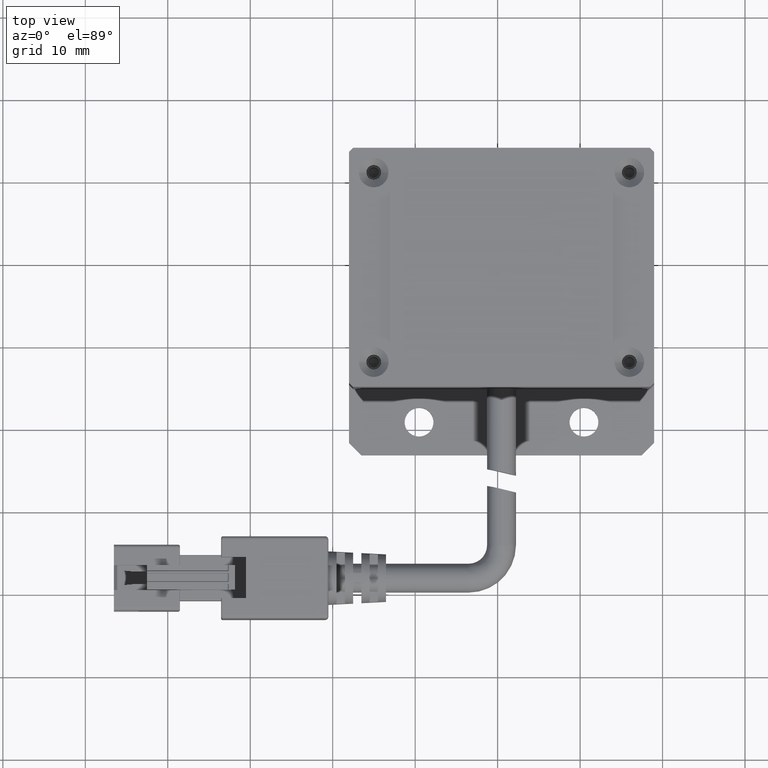
[diagram: clean part render]
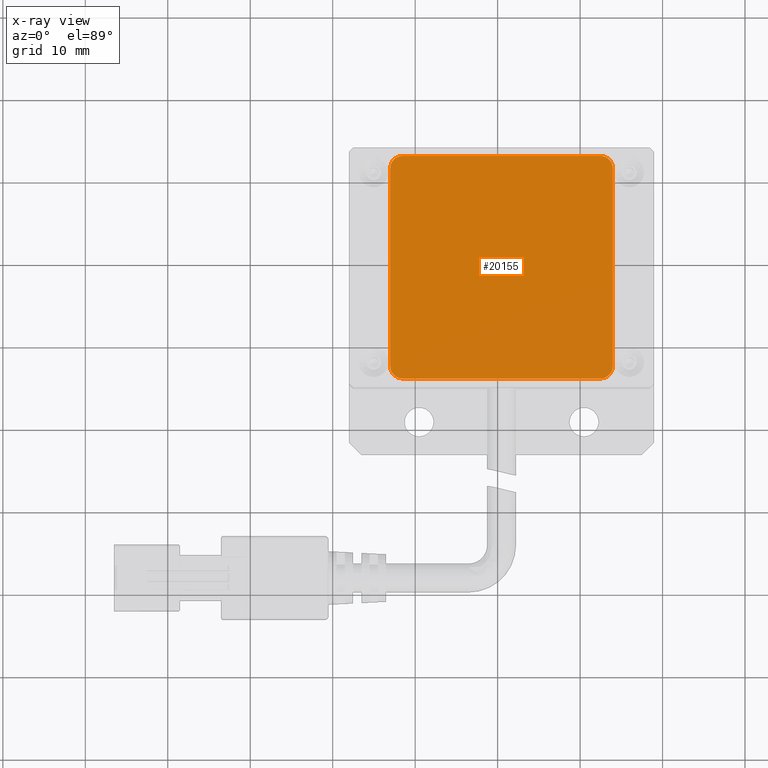
[diagram: x-ray — body ghosted, one internal face saturated and labeled with its STEP entity id]
A machine part, top view, then the same camera in x-ray: the body is ghosted and one INTERNAL B-rep face — a face not visible from any outside direction — is saturated and labeled: STEP entity #20155.
In plain terms, the highlighted planar face has unit normal (0, 0, 1).
Its self-contained STEP definition (entity closure, byte-faithful):
#95 = VERTEX_POINT ( 'NONE', #18037 ) ;
#132 = CARTESIAN_POINT ( 'NONE',  ( 12.47059946544482800, 12.94635357006494500, 15.99999999998363100 ) ) ;
#448 = DIRECTION ( 'NONE',  ( -1.000000000000000000, 0.0000000000000000000, 0.0000000000000000000 ) ) ;
#943 = CARTESIAN_POINT ( 'NONE',  ( 13.97059946544482900, -12.55364642993505300, 15.99999999998363100 ) ) ;
#1018 = AXIS2_PLACEMENT_3D ( 'NONE', #5120, #16010, #6682 ) ;
#1336 = DIRECTION ( 'NONE',  ( 1.000000000000000000, 0.0000000000000000000, 0.0000000000000000000 ) ) ;
#1367 = DIRECTION ( 'NONE',  ( 1.000000000000000000, -7.228014483236697000E-017, 0.0000000000000000000 ) ) ;
#2052 = PLANE ( 'NONE',  #8283 ) ;
#2251 = CARTESIAN_POINT ( 'NONE',  ( -11.52940053455516900, -14.05364642993505200, 15.99999999998363100 ) ) ;
#2601 = ORIENTED_EDGE ( 'NONE', *, *, #13126, .F. ) ;
#2936 = CARTESIAN_POINT ( 'NONE',  ( -11.52940053455516900, -14.05364642993505200, 15.99999999998363100 ) ) ;
#3045 = EDGE_LOOP ( 'NONE', ( #9372, #17638, #17722, #2601, #3585, #8242, #13356, #13600 ) ) ;
#3230 = CARTESIAN_POINT ( 'NONE',  ( 13.97059946544482900, 11.44635357006494500, 15.99999999998363100 ) ) ;
#3585 = ORIENTED_EDGE ( 'NONE', *, *, #19570, .F. ) ;
#3631 = DIRECTION ( 'NONE',  ( 1.000000000000000000, 0.0000000000000000000, -0.0000000000000000000 ) ) ;
#3874 = CARTESIAN_POINT ( 'NONE',  ( 12.47059946544482800, -12.55364642993505300, 15.99999999998363100 ) ) ;
#4283 = EDGE_CURVE ( 'NONE', #12346, #5299, #12738, .T. ) ;
#4350 = FACE_OUTER_BOUND ( 'NONE', #3045, .T. ) ;
#4471 = LINE ( 'NONE', #14961, #7624 ) ;
#4761 = VERTEX_POINT ( 'NONE', #3230 ) ;
#4928 = VERTEX_POINT ( 'NONE', #2251 ) ;
#5120 = CARTESIAN_POINT ( 'NONE',  ( -11.52940053455516900, 11.44635357006494500, 15.99999999998363100 ) ) ;
#5299 = VERTEX_POINT ( 'NONE', #7757 ) ;
#5418 = DIRECTION ( 'NONE',  ( 1.000000000000000000, 0.0000000000000000000, 0.0000000000000000000 ) ) ;
#6682 = DIRECTION ( 'NONE',  ( 1.000000000000000000, 0.0000000000000000000, 0.0000000000000000000 ) ) ;
#7123 = DIRECTION ( 'NONE',  ( 0.0000000000000000000, 1.000000000000000000, 0.0000000000000000000 ) ) ;
#7624 = VECTOR ( 'NONE', #13404, 1000.000000000000000 ) ;
#7757 = CARTESIAN_POINT ( 'NONE',  ( -11.52940053455516900, 12.94635357006494500, 15.99999999998363100 ) ) ;
#7980 = CARTESIAN_POINT ( 'NONE',  ( 12.47059946544482800, 11.44635357006494500, 15.99999999998363100 ) ) ;
#8242 = ORIENTED_EDGE ( 'NONE', *, *, #16556, .F. ) ;
#8243 = CARTESIAN_POINT ( 'NONE',  ( -11.52940053455516900, 11.44635357006494500, 15.99999999998363100 ) ) ;
#8283 = AXIS2_PLACEMENT_3D ( 'NONE', #8243, #12937, #3631 ) ;
#8453 = CIRCLE ( 'NONE', #1018, 1.500000000000001300 ) ;
#8761 = CARTESIAN_POINT ( 'NONE',  ( -13.02940053455517100, 11.44635357006494500, 15.99999999998363100 ) ) ;
#8778 = CARTESIAN_POINT ( 'NONE',  ( -13.02940053455517100, -12.55364642993505300, 15.99999999998363100 ) ) ;
#8869 = VERTEX_POINT ( 'NONE', #8761 ) ;
#9372 = ORIENTED_EDGE ( 'NONE', *, *, #20126, .F. ) ;
#9459 = AXIS2_PLACEMENT_3D ( 'NONE', #19967, #10660, #1336 ) ;
#9549 = DIRECTION ( 'NONE',  ( 1.000000000000000000, 0.0000000000000000000, 0.0000000000000000000 ) ) ;
#10580 = EDGE_CURVE ( 'NONE', #17122, #4928, #11978, .T. ) ;
#10660 = DIRECTION ( 'NONE',  ( 0.0000000000000000000, 0.0000000000000000000, 1.000000000000000000 ) ) ;
#11670 = CIRCLE ( 'NONE', #12584, 1.500000000000001300 ) ;
#11978 = CIRCLE ( 'NONE', #9459, 1.500000000000001300 ) ;
#12055 = CARTESIAN_POINT ( 'NONE',  ( 12.47059946544482800, -14.05364642993505300, 15.99999999998363100 ) ) ;
#12346 = VERTEX_POINT ( 'NONE', #132 ) ;
#12584 = AXIS2_PLACEMENT_3D ( 'NONE', #3874, #14757, #5418 ) ;
#12738 = LINE ( 'NONE', #17513, #16404 ) ;
#12937 = DIRECTION ( 'NONE',  ( 0.0000000000000000000, 0.0000000000000000000, 1.000000000000000000 ) ) ;
#13126 = EDGE_CURVE ( 'NONE', #95, #4761, #16393, .T. ) ;
#13139 = EDGE_CURVE ( 'NONE', #8869, #17122, #4471, .T. ) ;
#13356 = ORIENTED_EDGE ( 'NONE', *, *, #10580, .F. ) ;
#13385 = VECTOR ( 'NONE', #1367, 1000.000000000000000 ) ;
#13404 = DIRECTION ( 'NONE',  ( 0.0000000000000000000, -1.000000000000000000, 0.0000000000000000000 ) ) ;
#13600 = ORIENTED_EDGE ( 'NONE', *, *, #13139, .F. ) ;
#14757 = DIRECTION ( 'NONE',  ( 0.0000000000000000000, 0.0000000000000000000, 1.000000000000000000 ) ) ;
#14961 = CARTESIAN_POINT ( 'NONE',  ( -13.02940053455517100, 11.44635357006494500, 15.99999999998363100 ) ) ;
#14967 = AXIS2_PLACEMENT_3D ( 'NONE', #7980, #18843, #9549 ) ;
#15894 = VECTOR ( 'NONE', #7123, 1000.000000000000000 ) ;
#16010 = DIRECTION ( 'NONE',  ( 0.0000000000000000000, 0.0000000000000000000, 1.000000000000000000 ) ) ;
#16393 = LINE ( 'NONE', #943, #15894 ) ;
#16404 = VECTOR ( 'NONE', #448, 1000.000000000000000 ) ;
#16556 = EDGE_CURVE ( 'NONE', #4928, #17182, #17486, .T. ) ;
#17122 = VERTEX_POINT ( 'NONE', #8778 ) ;
#17182 = VERTEX_POINT ( 'NONE', #12055 ) ;
#17486 = LINE ( 'NONE', #2936, #13385 ) ;
#17513 = CARTESIAN_POINT ( 'NONE',  ( 12.47059946544482800, 12.94635357006494500, 15.99999999998363100 ) ) ;
#17638 = ORIENTED_EDGE ( 'NONE', *, *, #4283, .F. ) ;
#17722 = ORIENTED_EDGE ( 'NONE', *, *, #20047, .F. ) ;
#18037 = CARTESIAN_POINT ( 'NONE',  ( 13.97059946544482900, -12.55364642993505300, 15.99999999998363100 ) ) ;
#18843 = DIRECTION ( 'NONE',  ( 0.0000000000000000000, 0.0000000000000000000, 1.000000000000000000 ) ) ;
#19155 = CIRCLE ( 'NONE', #14967, 1.500000000000001300 ) ;
#19570 = EDGE_CURVE ( 'NONE', #17182, #95, #11670, .T. ) ;
#19967 = CARTESIAN_POINT ( 'NONE',  ( -11.52940053455516900, -12.55364642993505300, 15.99999999998363100 ) ) ;
#20047 = EDGE_CURVE ( 'NONE', #4761, #12346, #19155, .T. ) ;
#20126 = EDGE_CURVE ( 'NONE', #5299, #8869, #8453, .T. ) ;
#20155 = ADVANCED_FACE ( 'NONE', ( #4350 ), #2052, .F. ) ;